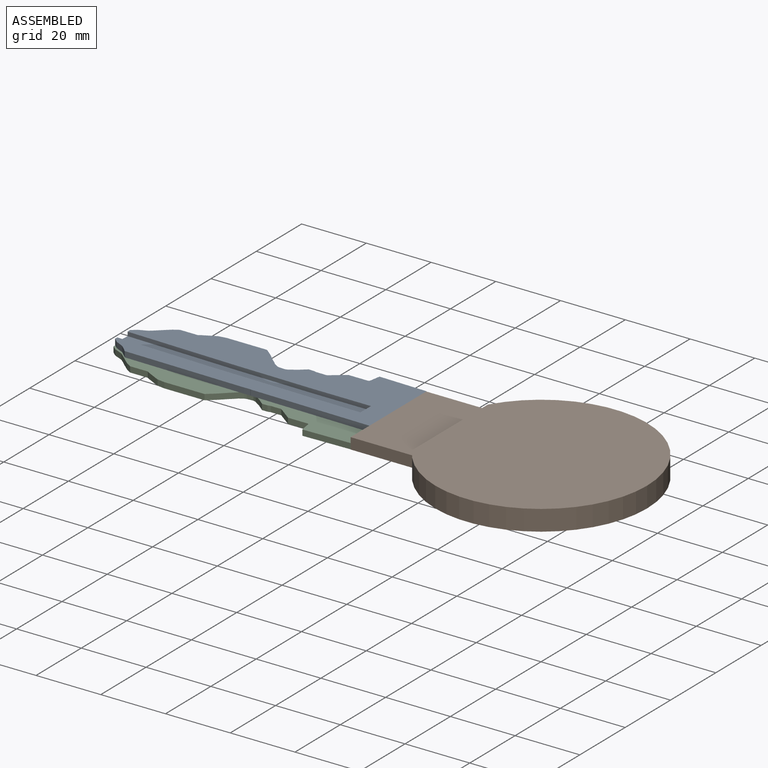
[diagram: assembled view]
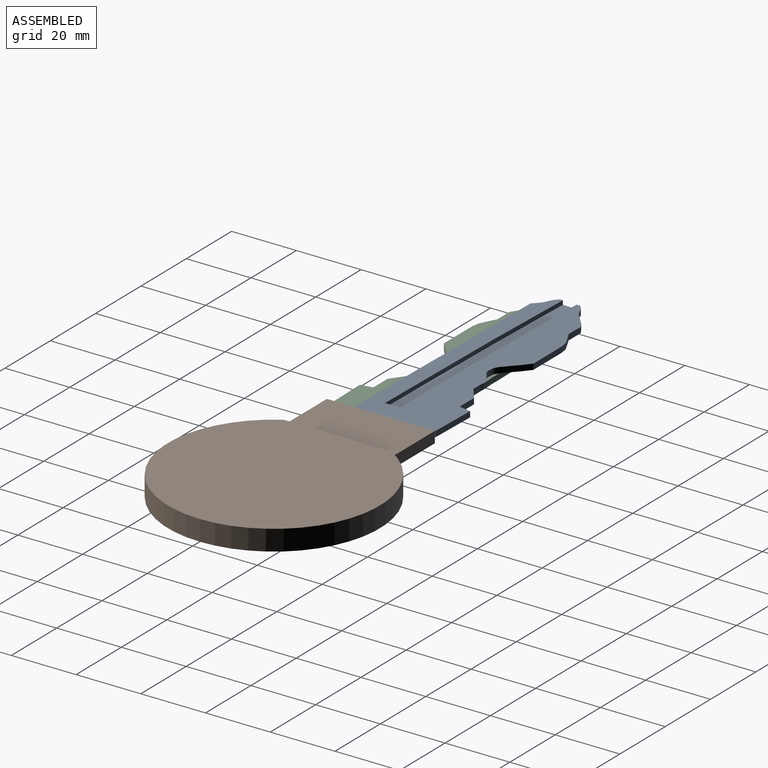
[diagram: assembled view, second angle]
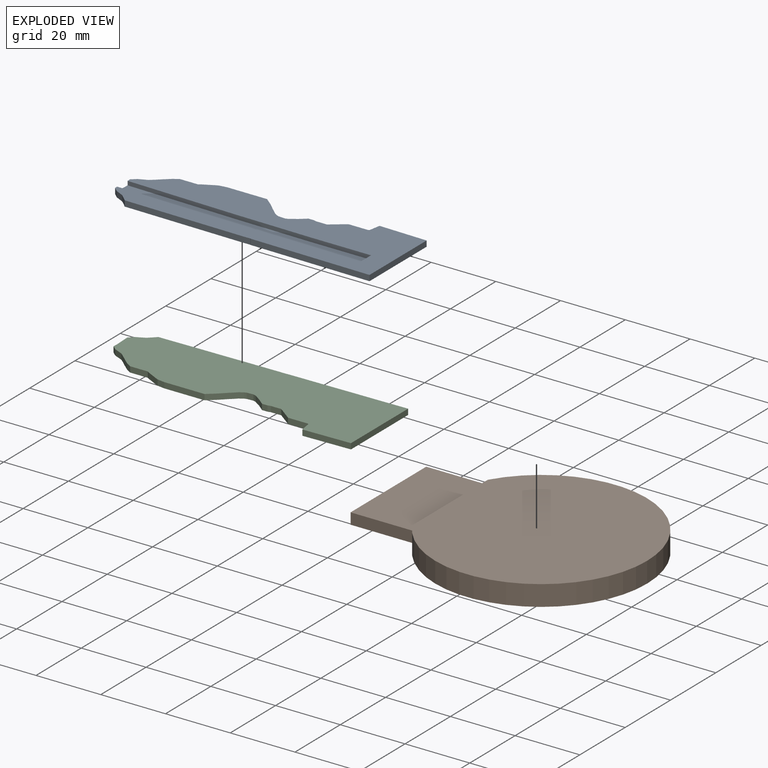
[diagram: exploded view]
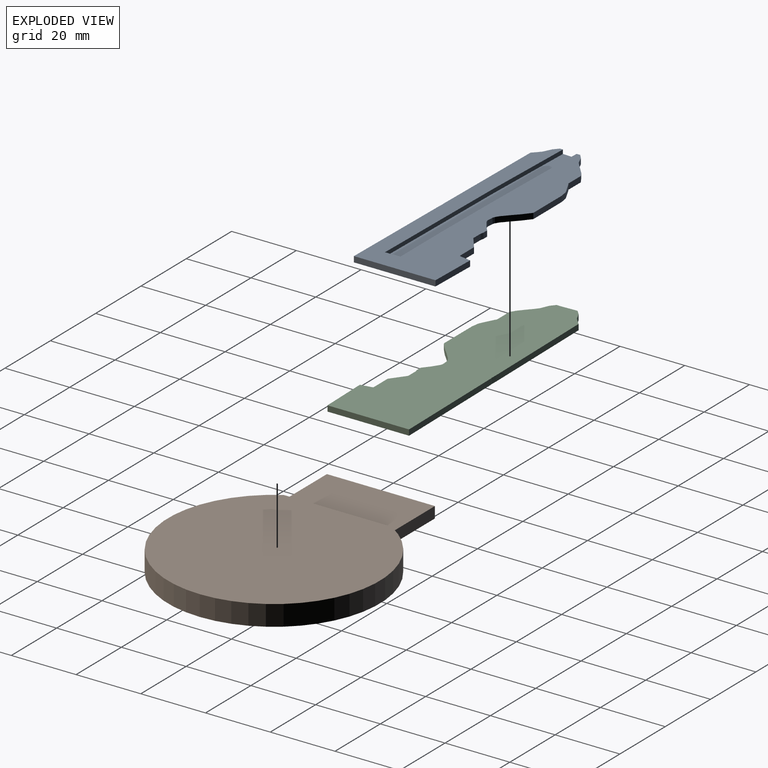
[diagram: exploded view, second angle]
ASSEMBLY  parts=3 mates=3
PART A: 51 faces, bbox 82.6x25.6x1.8 mm
  f0: plane 1.75x1.24mm, normal (-0.7,-0.71,0), area 3mm2, adj f1,f46,f47,f48
  f1: plane 37.15x1.75mm, normal (-0.01,-1,0), area 65mm2, adj f0,f2,f47,f48
  f2: plane 1.98x1.75mm, normal (0.02,-1,0), area 3.5mm2, adj f1,f3,f47,f48
  f3: plane 1.75x0.2mm, normal (-0.33,-0.94,0), area 0.4mm2, adj f2,f4,f47,f48
  f4: plane 37.05x1.75mm, normal (-0.01,-1,0), area 64.8mm2, adj f3,f5,f47,f48
  f5: plane 25.2x1.75mm, normal (1,0,0), area 44.1mm2, adj f4,f6,f47,f48
  f6: plane 14.78x1.75mm, normal (0.02,1,0), area 25.9mm2, adj f5,f7,f47,f48
  f7: plane 3.5x1.75mm, normal (-0.99,0.17,0), area 6.2mm2, adj f6,f8,f47,f48
  f8: plane 1.75x0.29mm, normal (-0.57,0.82,0), area 0.6mm2, adj f7,f9,f47,f48
  f9: plane 6.1x1.75mm, normal (0,1,0), area 10.7mm2, adj f8,f10,f47,f48
  f10: plane 4.38x3.27mm, normal (-0.6,0.8,0), area 9.6mm2, adj f9,f11,f47,f48
  f11: plane 3.23x1.75mm, normal (0,1,0), area 5.7mm2, adj f10,f12,f47,f48
  f12: plane 1.75x0.87mm, normal (0.24,0.97,0), area 1.6mm2, adj f11,f13,f47,f48
  f13: plane 1.75x1.69mm, normal (0,1,0), area 3mm2, adj f12,f14,f47,f48
  f14: plane 1.98x1.75mm, normal (-0.63,0.77,0), area 4.5mm2, adj f13,f15,f47,f48
  f15: plane 2.19x1.75mm, normal (-0.56,0.83,0), area 4.6mm2, adj f14,f16,f47,f48
  f16: plane 1.75x0.81mm, normal (-0.29,0.96,0), area 1.5mm2, adj f15,f17,f47,f48
  f17: plane 1.99x1.75mm, normal (0.06,1,0), area 3.5mm2, adj f16,f18,f47,f48
  f18: plane 1.75x0.68mm, normal (0.34,0.94,0), area 1.3mm2, adj f17,f19,f47,f48
  f19: plane 1.75x1.17mm, normal (0.54,0.84,0), area 2.4mm2, adj f18,f20,f47,f48
  f20: plane 1.75x0.92mm, normal (0.69,0.72,0), area 2.2mm2, adj f19,f21,f47,f48
  f21: plane 1.75x0.92mm, normal (0.65,0.76,0), area 2.1mm2, adj f20,f22,f47,f48
  f22: plane 2.03x1.95mm, normal (0.69,0.72,0), area 4.9mm2, adj f21,f23,f47,f48
  f23: plane 2.61x2.17mm, normal (0.64,0.77,0), area 5.9mm2, adj f22,f24,f47,f48
  f24: plane 12.43x1.75mm, normal (0,1,0), area 21.7mm2, adj f23,f25,f47,f48
  f25: plane 2.28x1.75mm, normal (-0.15,0.99,0), area 4mm2, adj f24,f26,f47,f48
  f26: plane 1.75x0.74mm, normal (-0.41,0.91,0), area 1.4mm2, adj f25,f27,f47,f48
  f27: plane 3.56x1.82mm, normal (-0.45,0.89,0), area 7mm2, adj f26,f28,f47,f48
  f28: plane 1.75x0.43mm, normal (-0.59,0.81,0), area 0.9mm2, adj f27,f29,f47,f48
  f29: plane 5.51x1.75mm, normal (0,1,0), area 9.6mm2, adj f28,f30,f47,f48
  f30: plane 1.75x1.65mm, normal (-0.53,0.85,0), area 3.4mm2, adj f29,f31,f47,f48
  f31: plane 1.84x1.75mm, normal (-0.65,0.76,0), area 4.3mm2, adj f30,f32,f47,f48
  f32: plane 1.75x1.65mm, normal (-0.67,0.74,0), area 3.9mm2, adj f31,f33,f47,f48
  f33: plane 1.75x1.11mm, normal (-0.63,0.78,0), area 2.5mm2, adj f32,f34,f47,f48
  f34: plane 2.57x1.75mm, normal (-0.4,0.92,0), area 4.9mm2, adj f33,f35,f47,f48
  f35: plane 1.75x1.49mm, normal (-0.64,0.77,0), area 3.4mm2, adj f34,f36,f47,f48
  f36: plane 1.75x1.1mm, normal (-1,-0.06,0), area 1.9mm2, adj f35,f37,f47,f48,f49
  f37: plane 34.2x1.25mm, normal (-0.03,-1,0), area 42.8mm2, adj f36,f38,f47,f50
  f38: plane 23.38x1.25mm, normal (-0.01,-1,0), area 29.2mm2, adj f37,f39,f47,f50
  f39: plane 18.45x1.25mm, normal (0,-1,0), area 23.1mm2, adj f38,f40,f47,f50
  f40: plane 4.75x1.25mm, normal (-1,0,0), area 5.9mm2, adj f39,f41,f47,f50
  f41: plane 46.31x1.25mm, normal (0.01,1,0), area 57.9mm2, adj f40,f42,f47,f50
  f42: plane 29.91x1.25mm, normal (0.03,1,0), area 37.4mm2, adj f41,f43,f47,f50
  f43: plane 1.75x0.92mm, normal (-1,0,0), area 1.6mm2, adj f42,f44,f47,f48,f49
  f44: plane 1.75x1.43mm, normal (-0.67,-0.74,0), area 3.4mm2, adj f43,f45,f47,f48
  f45: plane 2.52x1.75mm, normal (-0.44,-0.9,0), area 4.9mm2, adj f44,f46,f47,f48
  f46: plane 1.75x1.07mm, normal (-0.66,-0.75,0), area 2.5mm2, adj f0,f45,f47,f48
  f47: plane 82.64x25.56mm, normal (0,0,1), area 1289.2mm2, adj f0,f1,f2,f3,f4,f5,f6,f7
  f48: plane 82.64x25.56mm, normal (0,0,-1), area 1631.2mm2, adj f0,f1,f2,f3,f4,f5,f6,f7
  f49: plane 4.34x0.5mm, normal (-1,0.04,0), area 2.2mm2, adj f36,f43,f48,f50
  f50: plane 76.22x5.93mm, normal (0,0,1), area 342mm2, adj f37,f38,f39,f40,f41,f42,f49
PART B: 10 faces, bbox 79.9x65.4x6.4 mm
  f0: plane 19.05x3.45mm, normal (0,1,0), area 65.8mm2, adj f1,f3,f4,f6
  f1: plane 33.38x3.45mm, normal (-1,0,0), area 115.3mm2, adj f0,f2,f3,f4
  f2: plane 19.05x3.45mm, normal (0,-1,0), area 65.8mm2, adj f1,f3,f4,f6
  f3: plane 33.38x19.05mm, normal (0,0,1), area 635.8mm2, adj f0,f1,f2,f5
  f4: plane 33.38x19.05mm, normal (0,0,-1), area 635.8mm2, adj f0,f1,f2,f7
  f5: plane 33.38x1.45mm, normal (-1,0,0), area 48.3mm2, adj f3,f6,f8
  f6: cylinder r=32.72mm len=65.45mm, axis (0,0,-1), area 1083.3mm2, adj f0,f2,f5,f7,f8,f9
  f7: plane 33.38x1.45mm, normal (-1,0,0), area 48.3mm2, adj f4,f6,f9
  f8: plane 65.45x60.87mm, normal (0,0,1), area 3261mm2, adj f5,f6
  f9: plane 65.45x60.87mm, normal (0,0,-1), area 3261mm2, adj f6,f7
PART C: same geometry as A
PLACE A t=(-27.95,45.56,-0.01)mm
PLACE B t=(0,0,0.01)mm
PLACE C rot(axis=(1,0,0),180deg) t=(-27.95,-27.01,-0.01)mm
MATE planar A.f47 <-> B.f3  axis (0,0,1) through (-57.99,12.43,1.74)mm
MATE planar A.f48 <-> C.f48  axis (0,0,-1) through (-59.59,11.66,-0.01)mm
MATE planar C.f5 <-> B.f1  axis (1,0,0) through (-21.53,5.19,-0.89)mm
